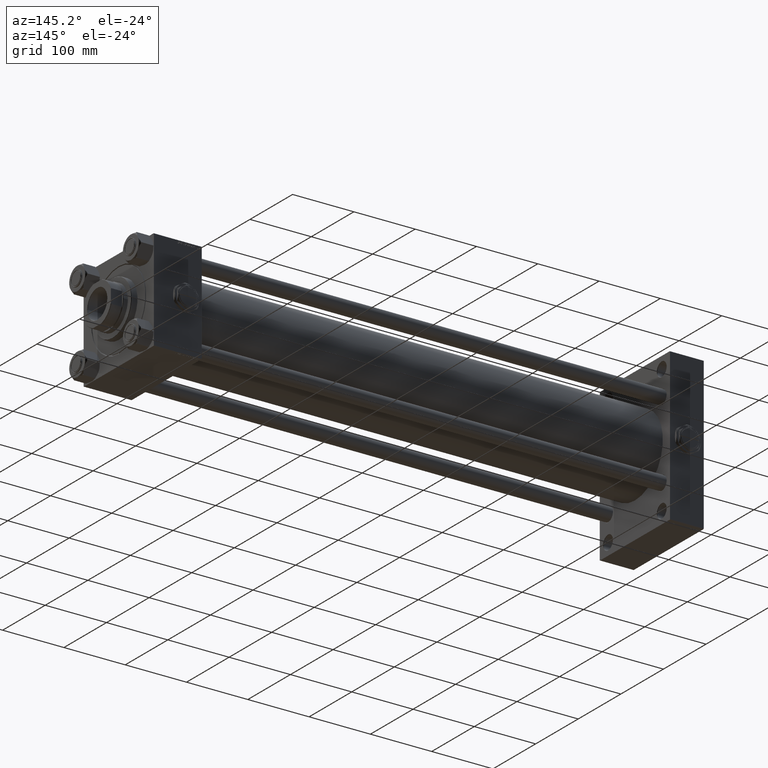
[diagram: clean part render]
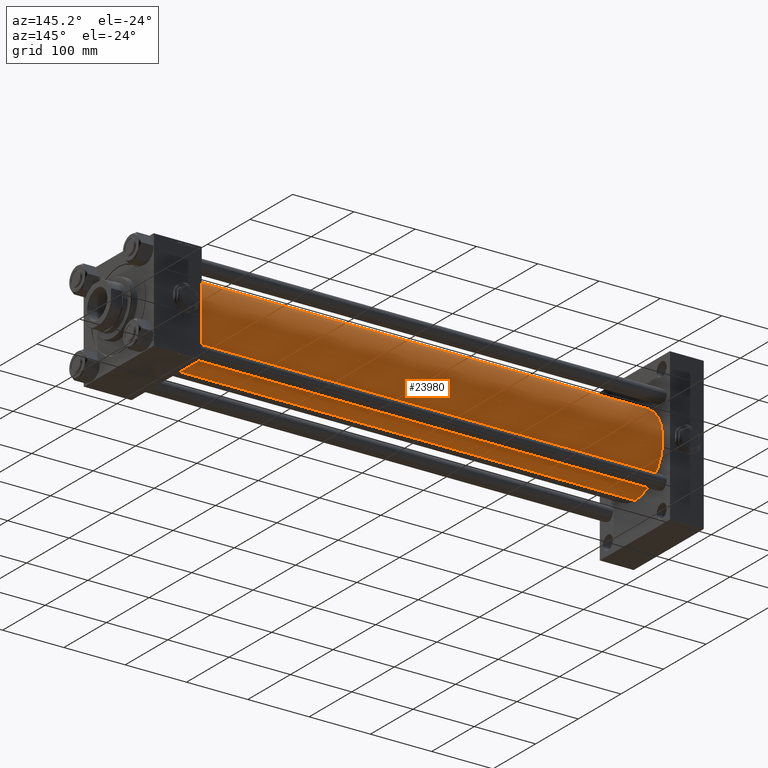
[diagram: same view with one face highlighted and labeled with its STEP entity id]
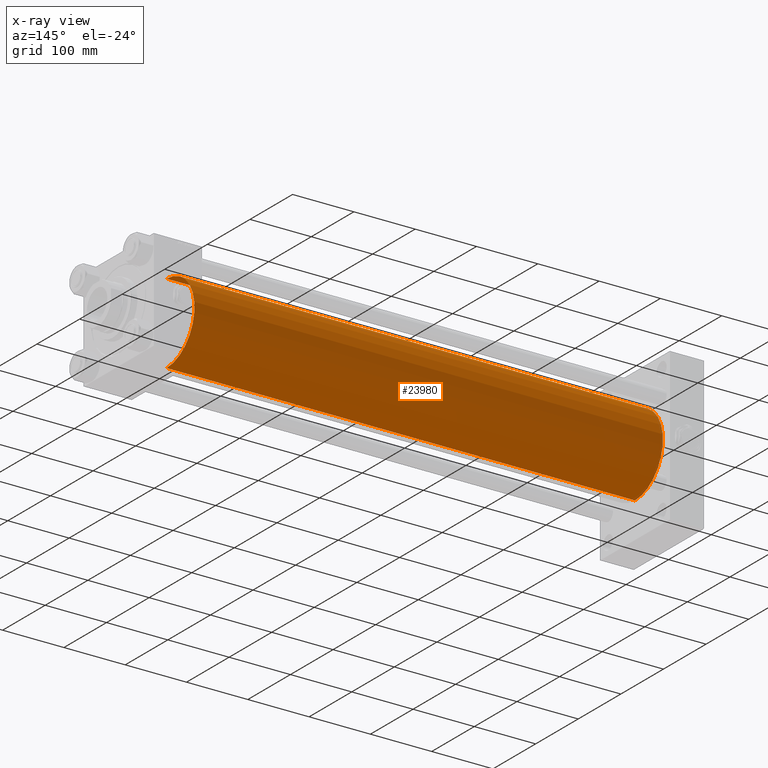
[diagram: x-ray of the same camera — body ghosted, the highlighted face saturated]
A machine part, auxiliary view. The second image highlights one B-rep face of the part: STEP entity #23980.
The next image is the same camera in x-ray: the body ghosted, the highlighted face saturated — about 0% of this face is hidden behind the body in this view.
In plain terms, the highlighted cylindrical surface (partial cylindrical patch) has radius 65.5 mm, axis along (-1, -0, -0).
Its self-contained STEP definition (entity closure, byte-faithful):
#94 = AXIS2_PLACEMENT_3D ( 'NONE', #5343, #20787, #29816 ) ;
#2240 = CARTESIAN_POINT ( 'NONE',  ( 819.0000000000001137, -2.602085213965210642E-15, 0.000000000000000000 ) ) ;
#2540 = ORIENTED_EDGE ( 'NONE', *, *, #3368, .F. ) ;
#3368 = EDGE_CURVE ( 'NONE', #4917, #25376, #31878, .T. ) ;
#4917 = VERTEX_POINT ( 'NONE', #19867 ) ;
#5343 = CARTESIAN_POINT ( 'NONE',  ( 55.00000000000004974, -2.602085213965210642E-15, 0.000000000000000000 ) ) ;
#5723 = EDGE_CURVE ( 'NONE', #28209, #25376, #45144, .T. ) ;
#6132 = ORIENTED_EDGE ( 'NONE', *, *, #5723, .T. ) ;
#9825 = CARTESIAN_POINT ( 'NONE',  ( 55.00000000000004974, 5.419351320449954973E-15, -65.50000000000001421 ) ) ;
#11019 = FACE_OUTER_BOUND ( 'NONE', #23756, .T. ) ;
#11100 = VECTOR ( 'NONE', #22832, 1000.000000000000000 ) ;
#11320 = DIRECTION ( 'NONE',  ( -1.000000000000000000, -0.000000000000000000, -0.000000000000000000 ) ) ;
#17794 = CARTESIAN_POINT ( 'NONE',  ( 819.0000000000001137, 5.419351320449954973E-15, -65.50000000000001421 ) ) ;
#18477 = CYLINDRICAL_SURFACE ( 'NONE', #48242, 65.50000000000001421 ) ;
#18926 = EDGE_CURVE ( 'NONE', #37485, #4917, #49791, .T. ) ;
#19867 = CARTESIAN_POINT ( 'NONE',  ( 819.0000000000001137, -2.602085213965210642E-15, 65.50000000000001421 ) ) ;
#20081 = ORIENTED_EDGE ( 'NONE', *, *, #18926, .F. ) ;
#20787 = DIRECTION ( 'NONE',  ( 1.000000000000000000, -0.000000000000000000, 0.000000000000000000 ) ) ;
#22832 = DIRECTION ( 'NONE',  ( -1.000000000000000000, -0.000000000000000000, -0.000000000000000000 ) ) ;
#23215 = CARTESIAN_POINT ( 'NONE',  ( 819.0000000000001137, 5.419351320449954973E-15, -65.50000000000001421 ) ) ;
#23756 = EDGE_LOOP ( 'NONE', ( #20081, #35616, #6132, #2540 ) ) ;
#23980 = ADVANCED_FACE ( 'NONE', ( #11019 ), #18477, .T. ) ;
#25376 = VERTEX_POINT ( 'NONE', #51143 ) ;
#28209 = VERTEX_POINT ( 'NONE', #9825 ) ;
#28530 = AXIS2_PLACEMENT_3D ( 'NONE', #38325, #52066, #30871 ) ;
#29816 = DIRECTION ( 'NONE',  ( 0.000000000000000000, 0.000000000000000000, 1.000000000000000000 ) ) ;
#30871 = DIRECTION ( 'NONE',  ( 0.000000000000000000, 0.000000000000000000, -1.000000000000000000 ) ) ;
#31878 = LINE ( 'NONE', #48103, #11100 ) ;
#35490 = DIRECTION ( 'NONE',  ( 0.000000000000000000, 0.000000000000000000, 1.000000000000000000 ) ) ;
#35616 = ORIENTED_EDGE ( 'NONE', *, *, #45280, .T. ) ;
#37485 = VERTEX_POINT ( 'NONE', #23215 ) ;
#38325 = CARTESIAN_POINT ( 'NONE',  ( 819.0000000000001137, -2.602085213965210642E-15, 0.000000000000000000 ) ) ;
#38702 = DIRECTION ( 'NONE',  ( -1.000000000000000000, -0.000000000000000000, -0.000000000000000000 ) ) ;
#39256 = LINE ( 'NONE', #17794, #46485 ) ;
#45144 = CIRCLE ( 'NONE', #94, 65.50000000000001421 ) ;
#45280 = EDGE_CURVE ( 'NONE', #37485, #28209, #39256, .T. ) ;
#46485 = VECTOR ( 'NONE', #11320, 1000.000000000000000 ) ;
#48103 = CARTESIAN_POINT ( 'NONE',  ( 819.0000000000001137, -2.602085213965210642E-15, 65.50000000000001421 ) ) ;
#48242 = AXIS2_PLACEMENT_3D ( 'NONE', #2240, #38702, #35490 ) ;
#49791 = CIRCLE ( 'NONE', #28530, 65.50000000000001421 ) ;
#51143 = CARTESIAN_POINT ( 'NONE',  ( 55.00000000000004974, -2.602085213965210642E-15, 65.50000000000001421 ) ) ;
#52066 = DIRECTION ( 'NONE',  ( 1.000000000000000000, 0.000000000000000000, 0.000000000000000000 ) ) ;